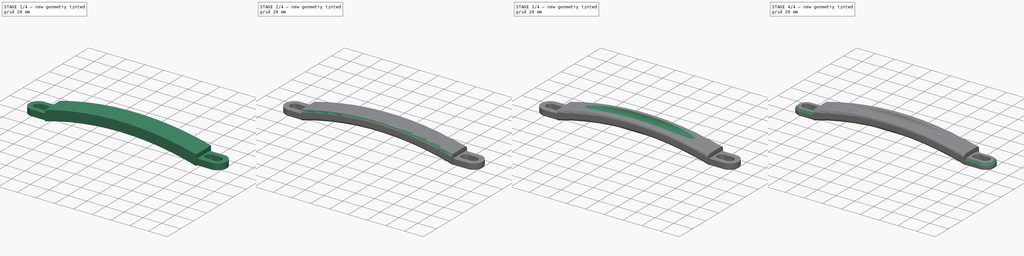
[diagram: build sequence overview — one tinted view per stage of 4, left to right]
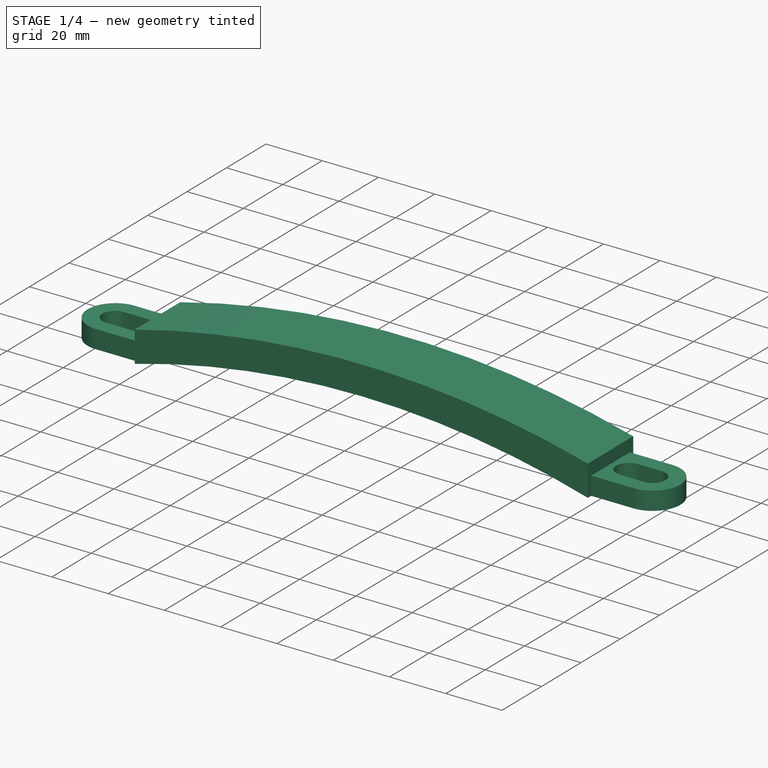
[diagram: stage 1 of 4 — iso view after this stage's code; geometry added in this stage tinted green]
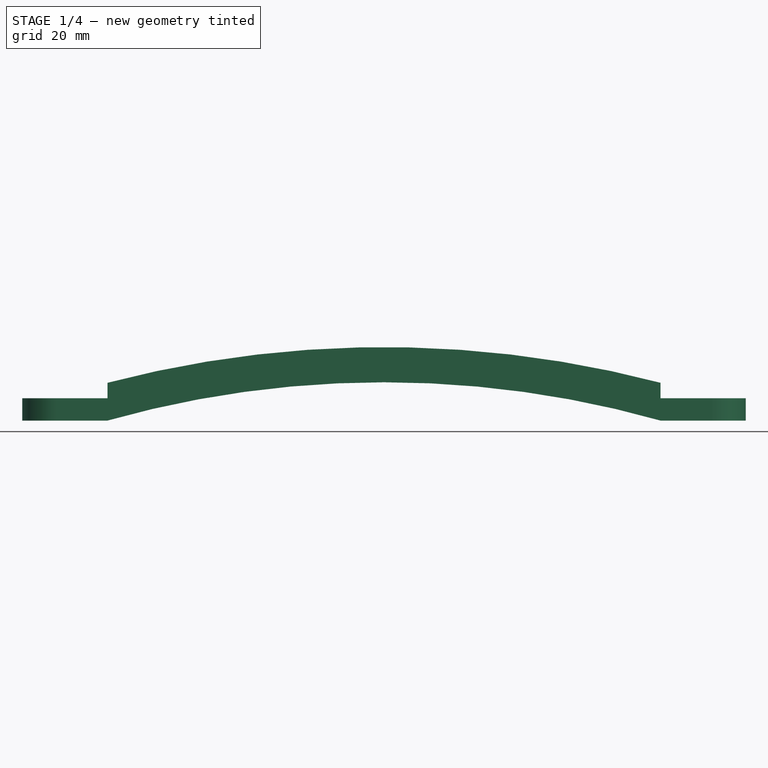
[diagram: stage 1 of 4 — front view after this stage's code; geometry added in this stage tinted green]
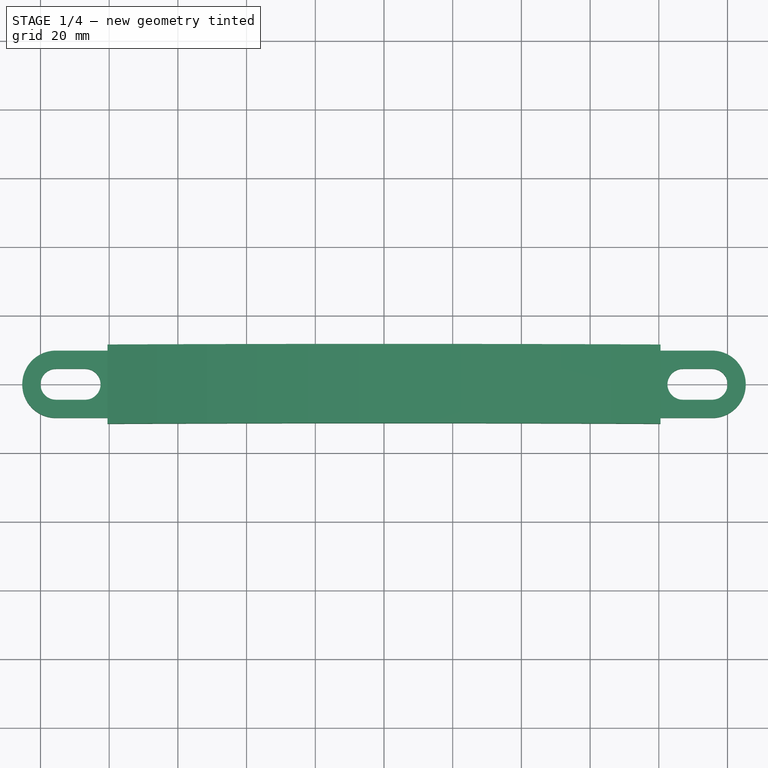
[diagram: stage 1 of 4 — top view after this stage's code; geometry added in this stage tinted green]
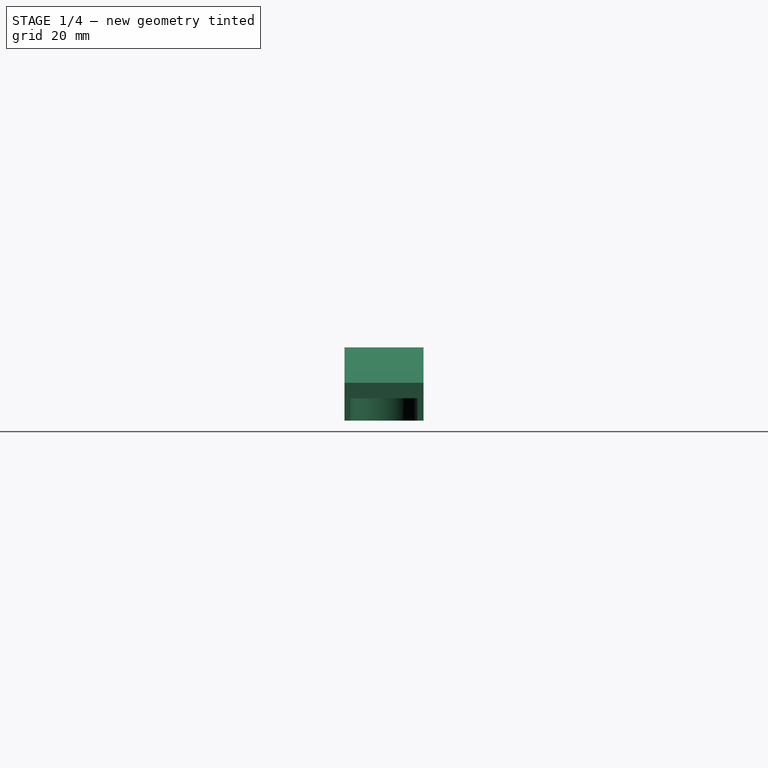
[diagram: stage 1 of 4 — right view after this stage's code; geometry added in this stage tinted green]
FCSTD DOCUMENT  (FreeCAD 1.1R)
Label: handle
License: All rights reserved
LicenseURL: https://en.wikipedia.org/wiki/All_rights_reserved
objects: Sketcher::SketchObject×7, PartDesign::Fillet×5, PartDesign::Pad×3, Image::ImagePlane×2, App::Point×1, PartDesign::Pocket×1, PartDesign::Chamfer×1, PartDesign::Body×1
note: 45 computed .brp shape members not serialized (recipe doc carries the construction recipe); baked Part::Feature solids carry a one-line shape summary decoded from their .brp

FEATURE [Image::ImagePlane] _20260408_154925133  label="20260408_154925133"
  Placement = pos=(-1.07723,-6.80532,0) rot=(0,0,1;0.221657rad)
  XSize = 209.535
  YSize = 96.5684
FEATURE [App::Point] Origin001
  Role = Origin
FEATURE [Sketcher::SketchObject] Sketch
  ArcFitTolerance = 1e-06
  AttachmentSupport = -> [Origin]
  ExternalTypes = [0]
  FullyConstrained = true
  MakeInternals = false
  MapMode = 5
  sketch-geometry (2):
    g0: LineSegment StartX=-82.5 StartY=0 StartZ=0 EndX=82.5 EndY=0 EndZ=0
    g1: LineSegment StartX=0 StartY=11.5 StartZ=0 EndX=0 EndY=-11.5 EndZ=0
  constraints (6):
    c: PointOnObject(g1,g-2)
    c: DistanceX(g0,g0) = 165
    c: Symmetric(g0,g0,g-2)
    c: Symmetric(g1,g1,g0)
    c: Symmetric(g1,g1,g-1)
    c: DistanceY(g1,g1) = 23
FEATURE [Sketcher::SketchObject] Sketch001
  ArcFitTolerance = 1e-06
  AttachmentSupport = -> [Sketch]
  ExternalTypes = [0]
  FullyConstrained = true
  MakeInternals = false
  MapMode = 2
  sketch-geometry (16):
    g0: ArcOfCircle CenterX=-95.5 CenterY=0 CenterZ=0 NormalX=0 NormalY=0 NormalZ=1 AngleXU=0 Radius=4.5 StartAngle=1.5708 EndAngle=4.71239
    g1: ArcOfCircle CenterX=-87 CenterY=0 CenterZ=0 NormalX=0 NormalY=0 NormalZ=1 AngleXU=0 Radius=4.5 StartAngle=4.71239 EndAngle=7.85398
    g2: LineSegment StartX=-95.5 StartY=4.5 StartZ=0 EndX=-87 EndY=4.5 EndZ=0
    g3: LineSegment StartX=-95.5 StartY=-4.5 StartZ=0 EndX=-87 EndY=-4.5 EndZ=0
    g4: ArcOfCircle CenterX=87 CenterY=0 CenterZ=0 NormalX=0 NormalY=0 NormalZ=1 AngleXU=0 Radius=4.5 StartAngle=1.5708 EndAngle=4.71239
    g5: ArcOfCircle CenterX=95.5 CenterY=0 CenterZ=0 NormalX=0 NormalY=0 NormalZ=1 AngleXU=0 Radius=4.5 StartAngle=4.71239 EndAngle=7.85398
    g6: LineSegment StartX=87 StartY=4.5 StartZ=0 EndX=95.5 EndY=4.5 EndZ=0
    g7: LineSegment StartX=87 StartY=-4.5 StartZ=0 EndX=95.5 EndY=-4.5 EndZ=0
    g8: ArcOfCircle CenterX=-95.5 CenterY=0 CenterZ=0 NormalX=0 NormalY=0 NormalZ=1 AngleXU=0 Radius=9.8 StartAngle=1.5708 EndAngle=4.71239
    g9: ArcOfCircle CenterX=95.5 CenterY=6e-16 CenterZ=0 NormalX=0 NormalY=0 NormalZ=1 AngleXU=0 Radius=9.8 StartAngle=4.71239 EndAngle=7.85398
    g10: LineSegment StartX=-95.5 StartY=9.8 StartZ=0 EndX=-80.5 EndY=9.8 EndZ=0
    g11: LineSegment StartX=-80.5 StartY=9.8 StartZ=0 EndX=-80.5 EndY=-9.8 EndZ=0
    g12: LineSegment StartX=-80.5 StartY=-9.8 StartZ=0 EndX=-95.5 EndY=-9.8 EndZ=0
    g13: LineSegment StartX=95.5 StartY=9.8 StartZ=0 EndX=80.5 EndY=9.8 EndZ=0
    g14: LineSegment StartX=80.5 StartY=9.8 StartZ=0 EndX=80.5 EndY=-9.8 EndZ=0
    g15: LineSegment StartX=80.5 StartY=-9.8 StartZ=0 EndX=95.5 EndY=-9.8 EndZ=0
  constraints (37):
    c: Tangent(g0,g2) = 1.5708
    c: Tangent(g0,g3) = -1.5708
    c: Tangent(g1,g2) = 1.5708
    c: Tangent(g1,g3) = -1.5708
    c: Equal(g0,g1)
    c: PointOnObject(g0,g-1)
    c: PointOnObject(g1,g-1)
    c: Tangent(g4,g6) = 1.5708
    c: Tangent(g4,g7) = -1.5708
    c: Tangent(g5,g6) = 1.5708
    c: Tangent(g5,g7) = -1.5708
    c: Symmetric(g5,g0,g-2)
    c: Symmetric(g4,g1,g-2)
    c: Symmetric(g1,g4,g-2)
    c: Distance(g1,g-2) = 82.5
    c: Distance(g1,g1) = 9
    c: Distance(g0,g1) = 8.5
    c: Coincident(g8,g0)
    c: Vertical(g8,g8)
    c: Vertical(g8,g0)
    c: Symmetric(g9,g8,g-2)
    c: Symmetric(g9,g0,g-2)
    c: Symmetric(g9,g8,g-2)
    c: Distance(g8,g0) = 5.3
    c: Tangent(g10,g8) = 1.5708
    c: Coincident(g10,g11)
    c: Vertical(g11)
    c: Coincident(g11,g12)
    c: Tangent(g12,g8) = 1.5708
    c: DistanceX(g12,g12) = 15
    c: Tangent(g13,g9) = -1.5708
    c: Coincident(g13,g14)
    c: Vertical(g14)
    c: Coincident(g14,g15)
    c: Coincident(g15,g9)
    c: Horizontal(g15)
    c: Symmetric(g14,g11,g-2)
FEATURE [PartDesign::Pad] Pad
  Direction = (0,0,1)
  Length = 6.5
  Length2 = 10
  Profile = -> Sketch001
  ReferenceAxis = -> Sketch001 [N_Axis]
  Refine = true
  SideType = 0
  Suppressed = false
  Type = 0
  Type2 = 0
FEATURE [Image::ImagePlane] _20260408_160630187  label="20260408_160630187"
  Placement = pos=(0.0666704,2.8e-15,15.8706) rot=(0.99069,-0.096265,-0.096265;4.70303rad)
  XSize = 203.001
  YSize = 86.281
FEATURE [Sketcher::SketchObject] Sketch002
  ArcFitTolerance = 1e-06
  AttachmentSupport = -> [Origin]
  ExternalTypes = [0]
  FullyConstrained = false
  MakeInternals = false
  MapMode = 5
  Placement = pos=(0,0,0) rot=(1,0,0;1.5708rad)
  sketch-geometry (4):
    g0: ArcOfCircle CenterX=0 CenterY=-284.992 CenterZ=0 NormalX=0 NormalY=0 NormalZ=1 AngleXU=0 Radius=296.143 StartAngle=1.2955 EndAngle=1.84609
    g1: ArcOfCircle CenterX=0 CenterY=-295.992 CenterZ=0 NormalX=0 NormalY=0 NormalZ=1 AngleXU=0 Radius=317.371 StartAngle=1.31435 EndAngle=1.82724
    g2: LineSegment StartX=-80.5 StartY=0 StartZ=0 EndX=-80.5 EndY=11 EndZ=0
    g3: LineSegment StartX=80.5 StartY=0 StartZ=0 EndX=80.5 EndY=11 EndZ=0
  constraints (12):
    c: PointOnObject(g0,g-2)
    c: Symmetric(g0,g0,g-2)
    c: PointOnObject(g0,g-1)
    c: DistanceX(g0,g0) = 161
    c: PointOnObject(g1,g-2)
    c: Symmetric(g1,g1,g-2)
    c: Distance(g0,g1) = 11
    c: Coincident(g2,g0)
    c: Coincident(g2,g1)
    c: Vertical(g2)
    c: Coincident(g3,g0)
    c: Coincident(g3,g1)
FEATURE [PartDesign::Pad] Pad001
  BaseFeature = -> Pad
  Direction = (0,-1,2e-16)
  Length = 23
  Length2 = 10
  Profile = -> Sketch002
  ReferenceAxis = -> Sketch002 [N_Axis]
  Refine = true
  SideType = 2
  Suppressed = false
  Type = 0
  Type2 = 0
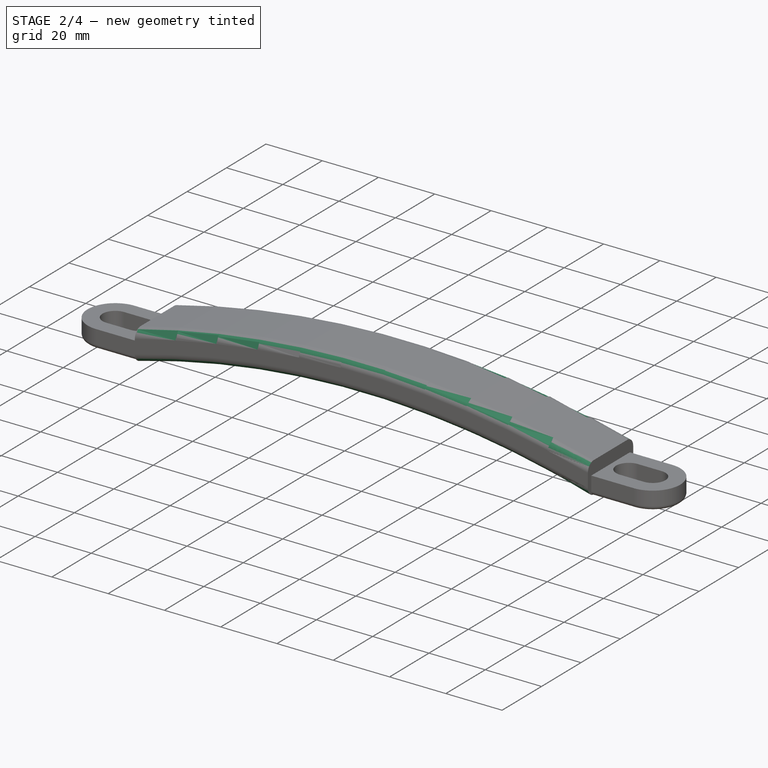
[diagram: stage 2 of 4 — iso view after this stage's code; geometry added in this stage tinted green]
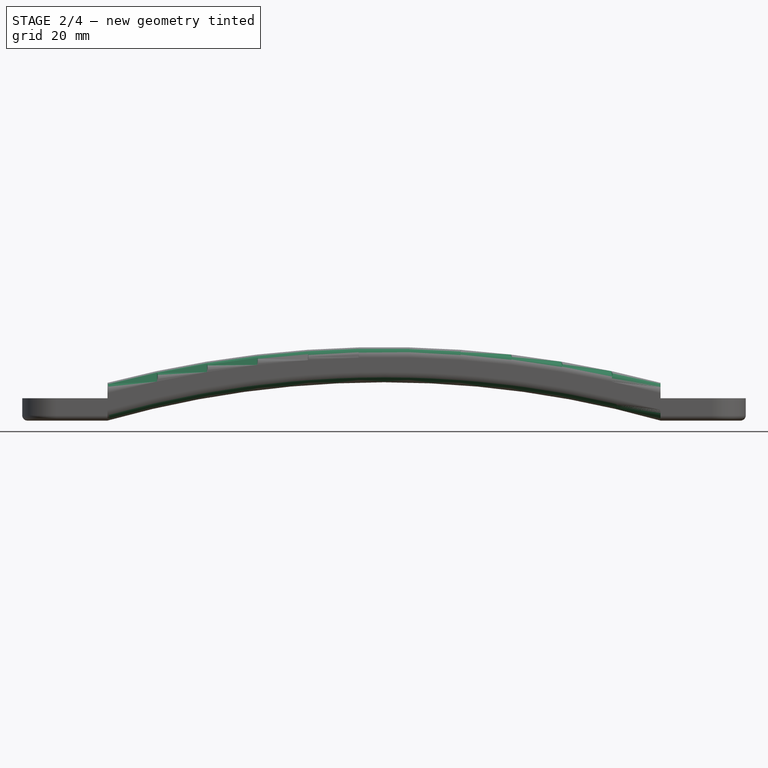
[diagram: stage 2 of 4 — front view after this stage's code; geometry added in this stage tinted green]
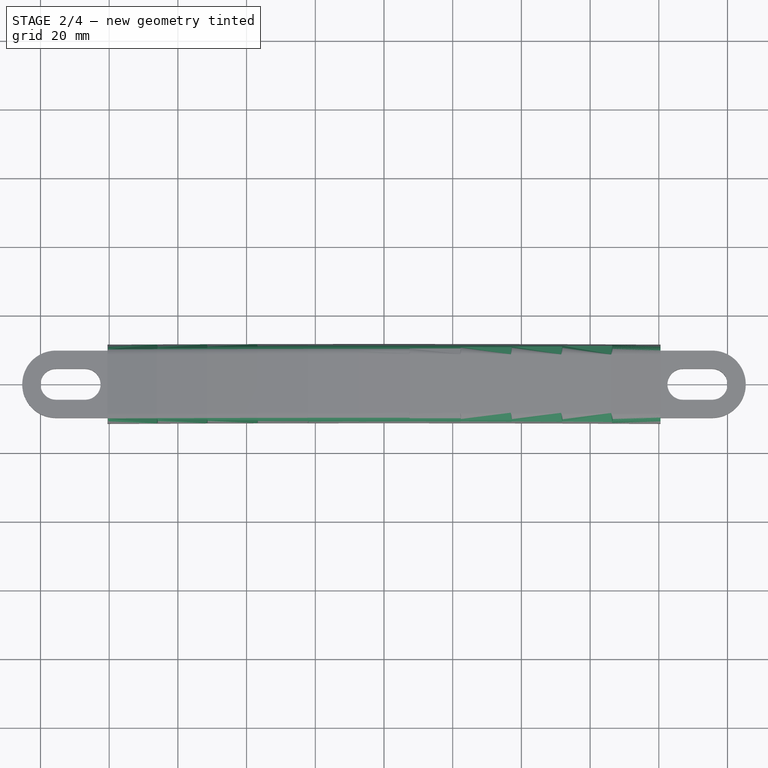
[diagram: stage 2 of 4 — top view after this stage's code; geometry added in this stage tinted green]
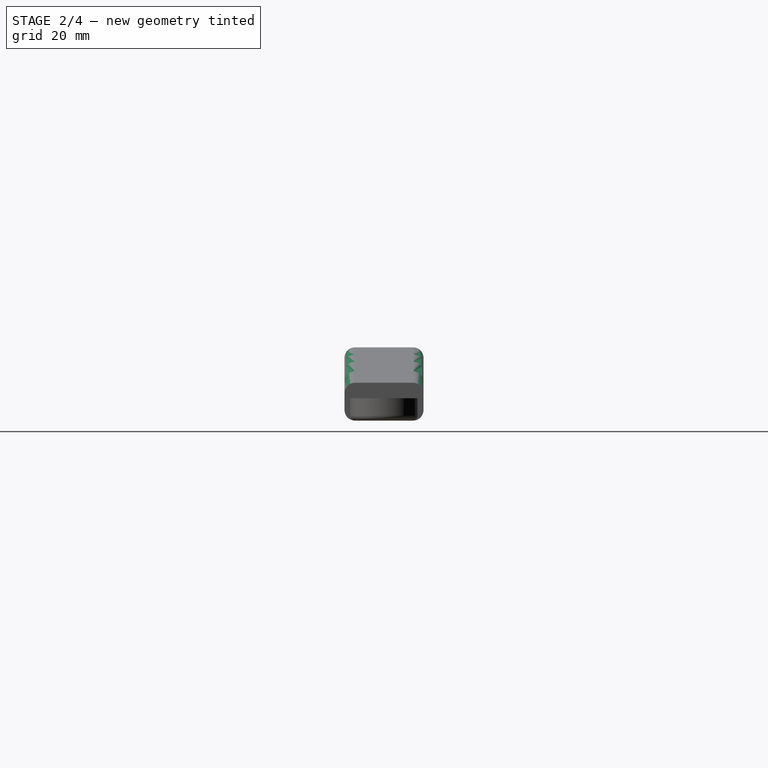
[diagram: stage 2 of 4 — right view after this stage's code; geometry added in this stage tinted green]
FEATURE [PartDesign::Fillet] Fillet
  Base = -> Pad001 [Edge44,Edge45,Edge15]
  BaseFeature = -> Pad001
  Radius = 1.5
  Refine = true
  SupportTransform = false
  Suppressed = false
  UseAllEdges = false
FEATURE [PartDesign::Fillet] Fillet001
  Base = -> Fillet [Edge45,Edge44]
  BaseFeature = -> Fillet
  Radius = 3
  Refine = true
  SupportTransform = false
  Suppressed = false
  UseAllEdges = false
FEATURE [PartDesign::Fillet] Fillet002
  Base = -> Fillet001 [Edge29,Edge24]
  BaseFeature = -> Fillet001
  Radius = 3
  Refine = true
  SupportTransform = false
  Suppressed = false
  UseAllEdges = false
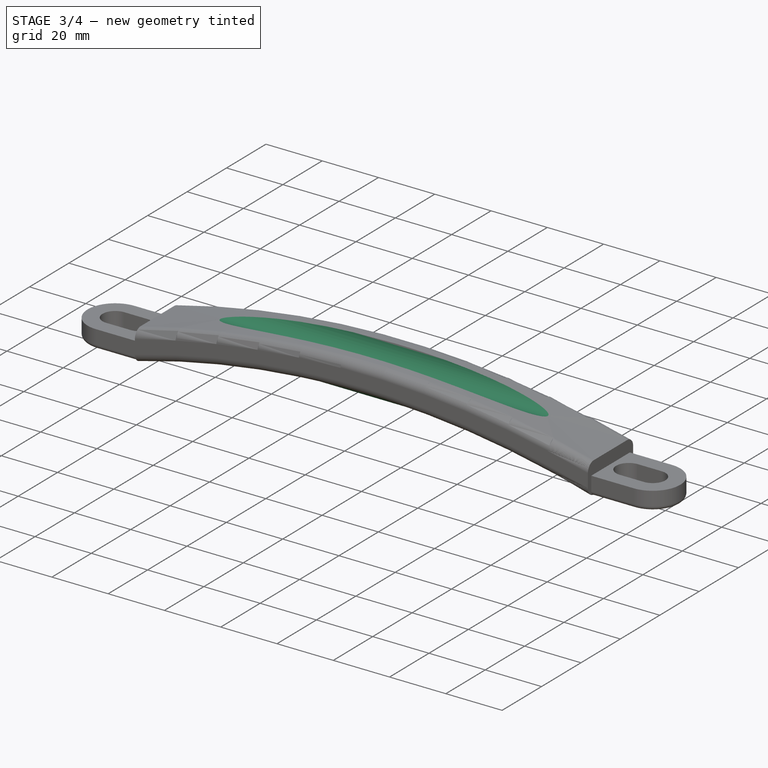
[diagram: stage 3 of 4 — iso view after this stage's code; geometry added in this stage tinted green]
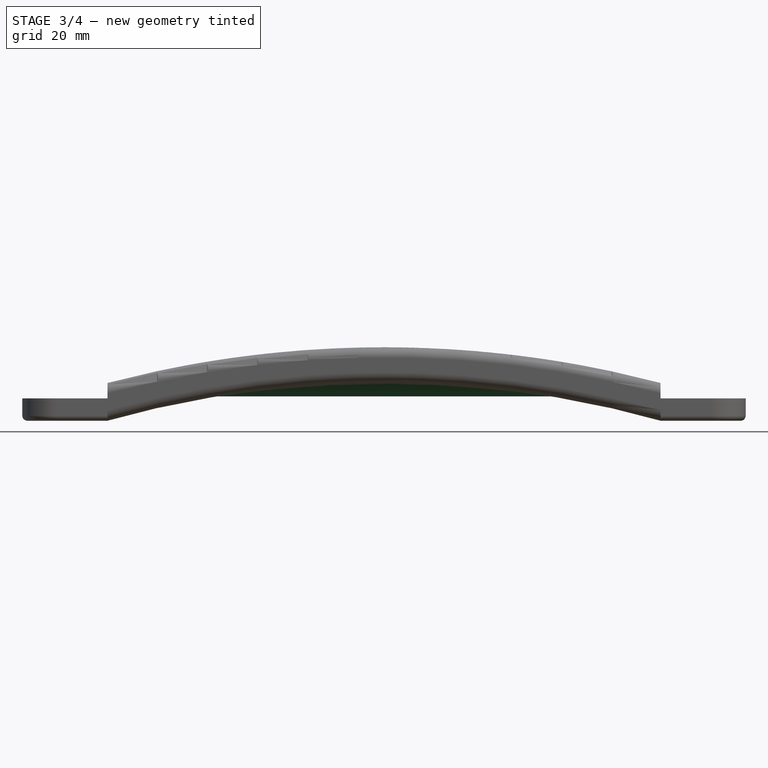
[diagram: stage 3 of 4 — front view after this stage's code; geometry added in this stage tinted green]
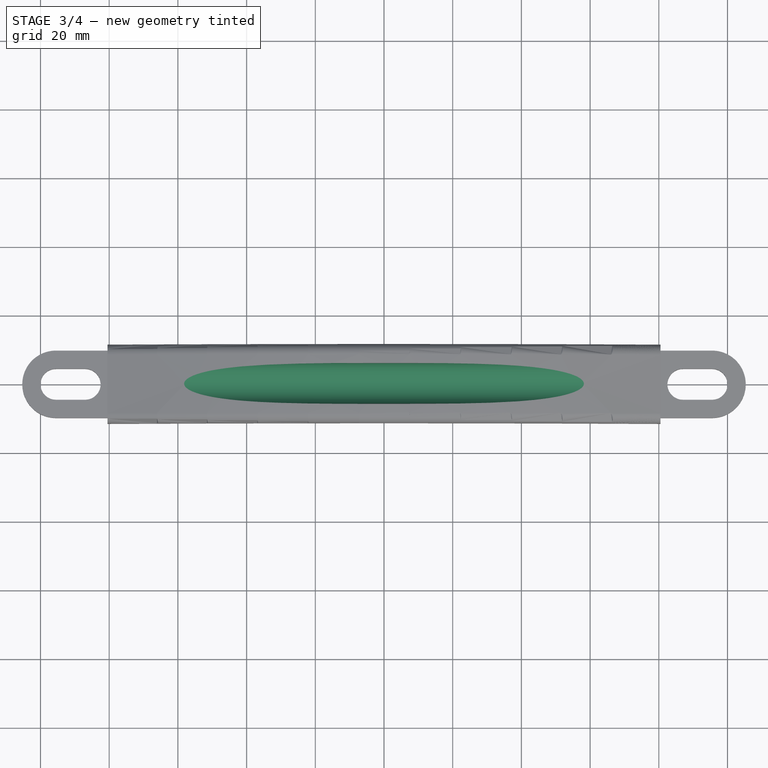
[diagram: stage 3 of 4 — top view after this stage's code; geometry added in this stage tinted green]
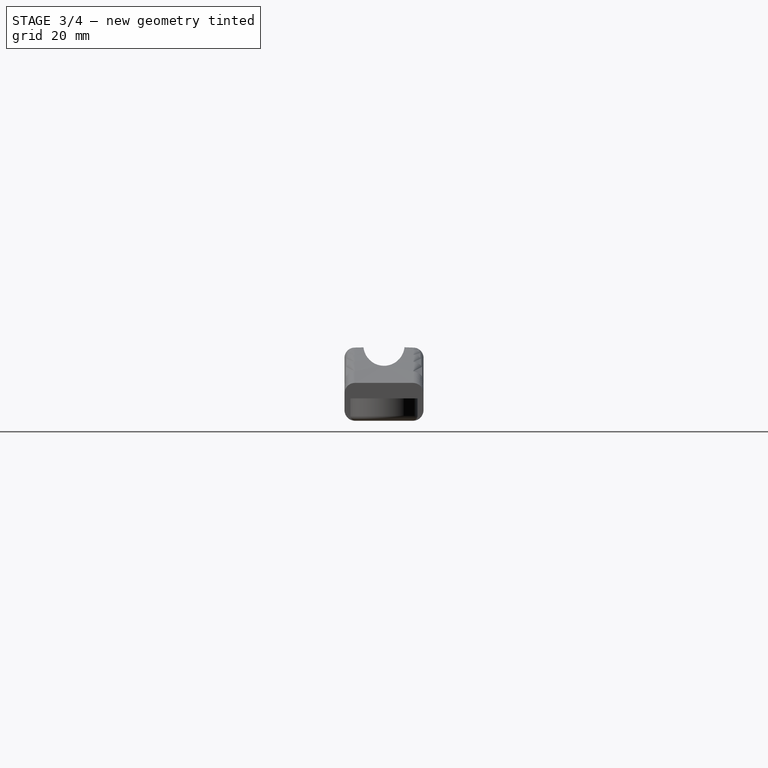
[diagram: stage 3 of 4 — right view after this stage's code; geometry added in this stage tinted green]
FEATURE [Sketcher::SketchObject] Sketch003
  ArcFitTolerance = 1e-06
  AttachmentSupport = -> [Origin]
  ExternalTypes = [0]
  FullyConstrained = true
  MakeInternals = false
  MapMode = 5
  Placement = pos=(0,0,0) rot=(0.57735,0.57735,0.57735;2.0944rad)
  sketch-geometry (1):
    g0: Circle CenterX=0 CenterY=22 CenterZ=0 NormalX=0 NormalY=0 NormalZ=1 AngleXU=0 Radius=6
  constraints (3):
    c: Diameter(g0) = 12
    c: PointOnObject(g0,g-2)
    c: Distance(g0,g-1) = 22
FEATURE [PartDesign::Pocket] Pocket
  BaseFeature = -> Fillet002
  Direction = (-1,0,0)
  Length = 500
  Length2 = 5
  Profile = -> Sketch003
  ReferenceAxis = -> Sketch003 [N_Axis]
  Refine = true
  SideType = 2
  Suppressed = false
  Type = 0
  Type2 = 0
FEATURE [Sketcher::SketchObject] Sketch004
  ArcFitTolerance = 1e-06
  AttachmentSupport = -> [Origin]
  ExternalTypes = [0]
  FullyConstrained = false
  MakeInternals = false
  MapMode = 5
  Placement = pos=(0,0,0) rot=(0.57735,0.57735,0.57735;2.0944rad)
  sketch-geometry (2):
    g0: LineSegment StartX=-8.75 StartY=11.4259 StartZ=0 EndX=8.75 EndY=11.4259 EndZ=0
    g1: ArcOfCircle CenterX=-2e-16 CenterY=18.0714 CenterZ=0 NormalX=0 NormalY=0 NormalZ=1 AngleXU=0 Radius=10.9875 StartAngle=3.79114 EndAngle=5.63364
  constraints (4):
    c: Symmetric(g0,g0,g-2)
    c: Coincident(g1,g0)
    c: Coincident(g1,g0)
    c: Distance(g0,g0) = 17.5
FEATURE [PartDesign::Pad] Pad002
  BaseFeature = -> Pocket
  Direction = (1,0,0)
  Length = 120
  Length2 = 10
  Profile = -> Sketch004
  ReferenceAxis = -> Sketch004 [N_Axis]
  Refine = true
  SideType = 2
  Suppressed = false
  Type = 0
  Type2 = 0
FEATURE [Sketcher::SketchObject] Sketch005
  ArcFitTolerance = 1e-06
  AttachmentSupport = -> [Origin]
  ExternalTypes = [0]
  FullyConstrained = false
  MakeInternals = false
  MapMode = 5
  sketch-geometry (1):
    g0: LineSegment StartX=-82.7276 StartY=0 StartZ=0 EndX=83.2409 EndY=0 EndZ=0
  constraints (2):
    c: PointOnObject(g0,g-1)
    c: PointOnObject(g0,g-1)
FEATURE [Sketcher::SketchObject] Sketch006
  ArcFitTolerance = 1e-06
  AttachmentSupport = -> [Origin]
  ExternalTypes = [0]
  FullyConstrained = false
  MakeInternals = false
  MapMode = 5
  sketch-geometry (3):
    g0: LineSegment StartX=-83.8866 StartY=8.3941 StartZ=0 EndX=-83.8866 EndY=-8.6059 EndZ=0
    g1: LineSegment StartX=-100.004 StartY=0 StartZ=0 EndX=-83.0043 EndY=0 EndZ=0
    g2: LineSegment StartX=-104.721 StartY=0 StartZ=0 EndX=-79.7209 EndY=0 EndZ=0
  constraints (8):
    c: Vertical(g0)
    c: Distance(g0,g0) = 17
    c: PointOnObject(g1,g-1)
    c: PointOnObject(g1,g-1)
    c: DistanceX(g1,g1) = 17
    c: PointOnObject(g2,g-1)
    c: PointOnObject(g2,g-1)
    c: Distance(g2,g2) = 25
FEATURE [PartDesign::Fillet] Fillet003
  Base = -> Pad002 [Edge29]
  BaseFeature = -> Pad002
  Radius = 2
  Refine = true
  SupportTransform = false
  Suppressed = false
  UseAllEdges = false
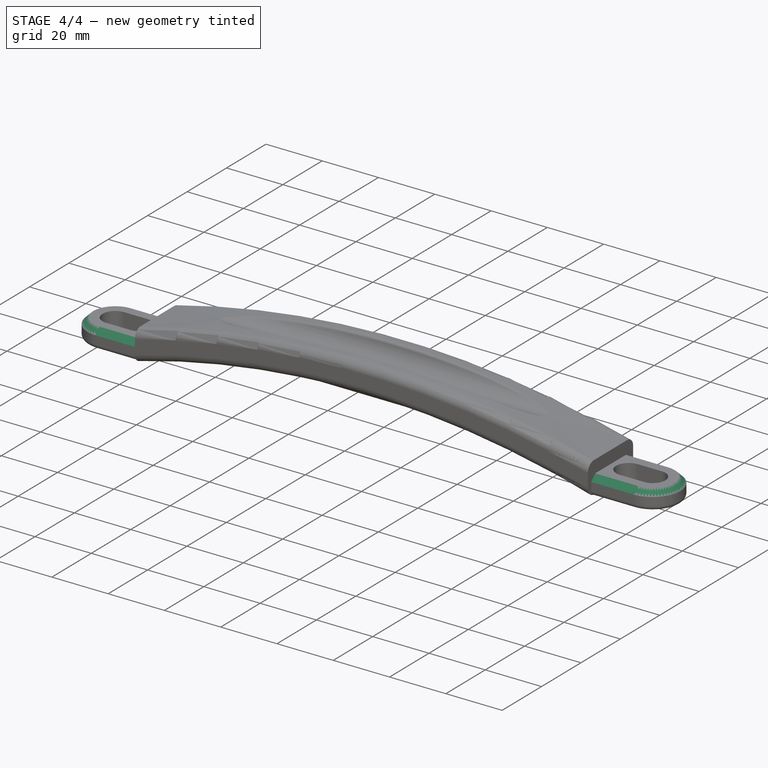
[diagram: stage 4 of 4 — iso view after this stage's code; geometry added in this stage tinted green]
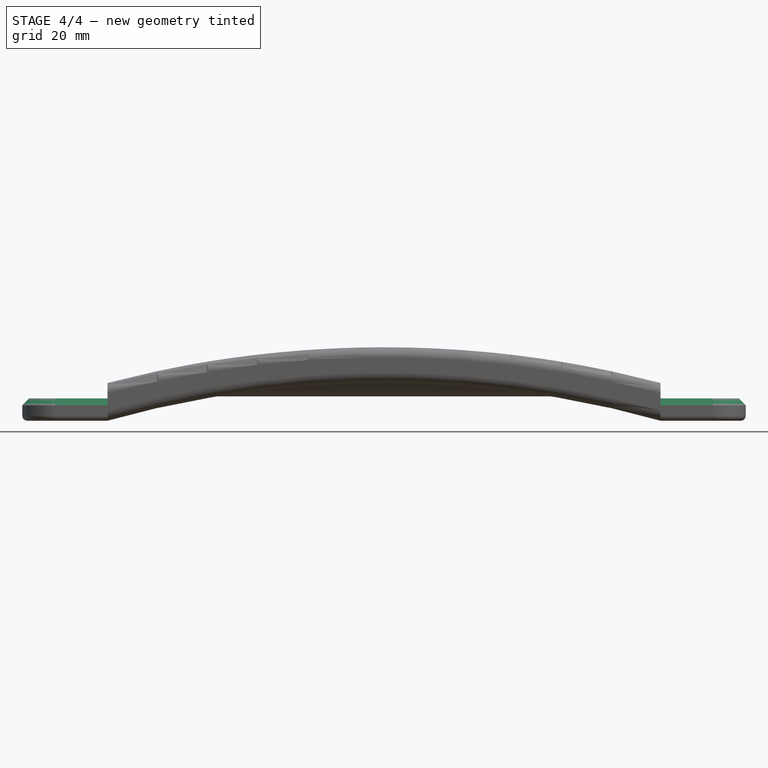
[diagram: stage 4 of 4 — front view after this stage's code; geometry added in this stage tinted green]
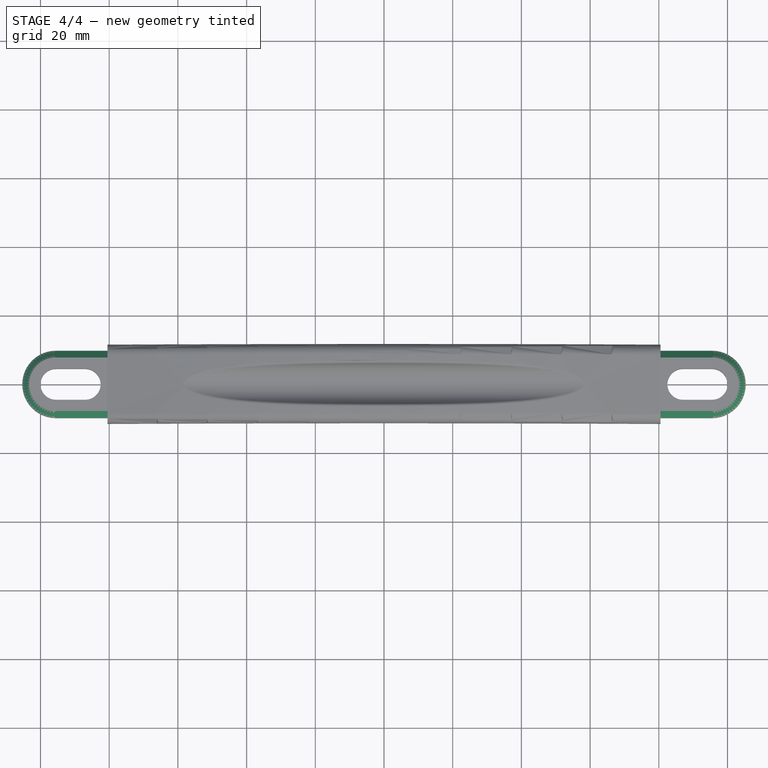
[diagram: stage 4 of 4 — top view after this stage's code; geometry added in this stage tinted green]
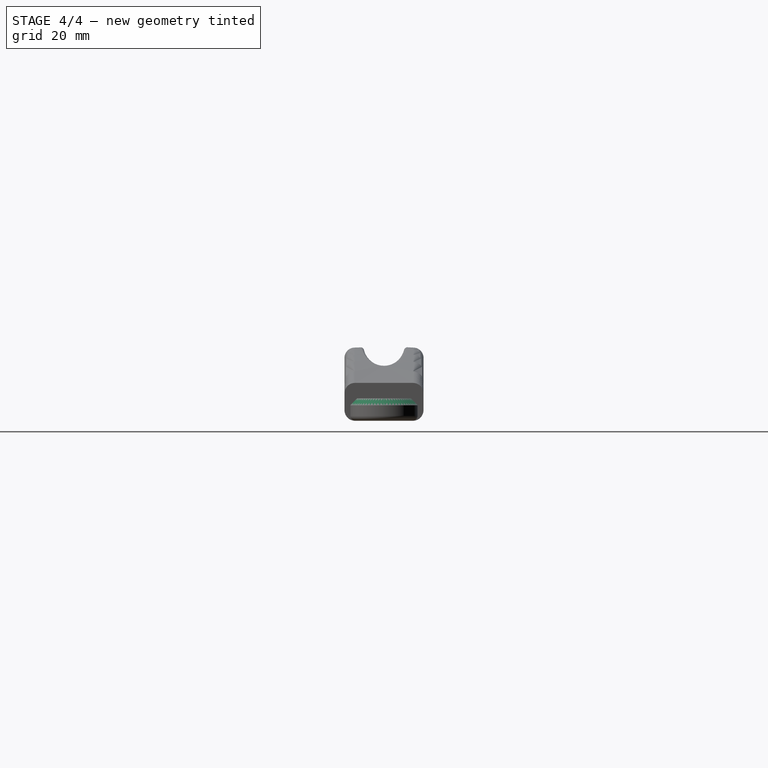
[diagram: stage 4 of 4 — right view after this stage's code; geometry added in this stage tinted green]
FEATURE [PartDesign::Chamfer] Chamfer
  Angle = 45
  Base = -> Fillet003 [Edge63,Edge65,Edge83,Edge86]
  BaseFeature = -> Fillet003
  ChamferType = 0
  FlipDirection = false
  Refine = true
  Size = 2
  Size2 = 1
  SupportTransform = false
  Suppressed = false
  UseAllEdges = false
FEATURE [PartDesign::Fillet] Fillet004
  Base = -> Chamfer [Edge50]
  BaseFeature = -> Chamfer
  Radius = 1
  Refine = true
  SupportTransform = false
  Suppressed = false
  UseAllEdges = false
FEATURE [PartDesign::Body] Body
  AllowCompound = true
  Group = -> [Sketch,Sketch001,Pad,Sketch002,Pad001,Fillet,Fillet001,Fillet002,Sketch003,Pocket,Sketch004,Pad002,Fillet003,Chamfer,Fillet004,Sketch005,Sketch006]
  Origin = -> Origin
  Tip = -> Fillet004
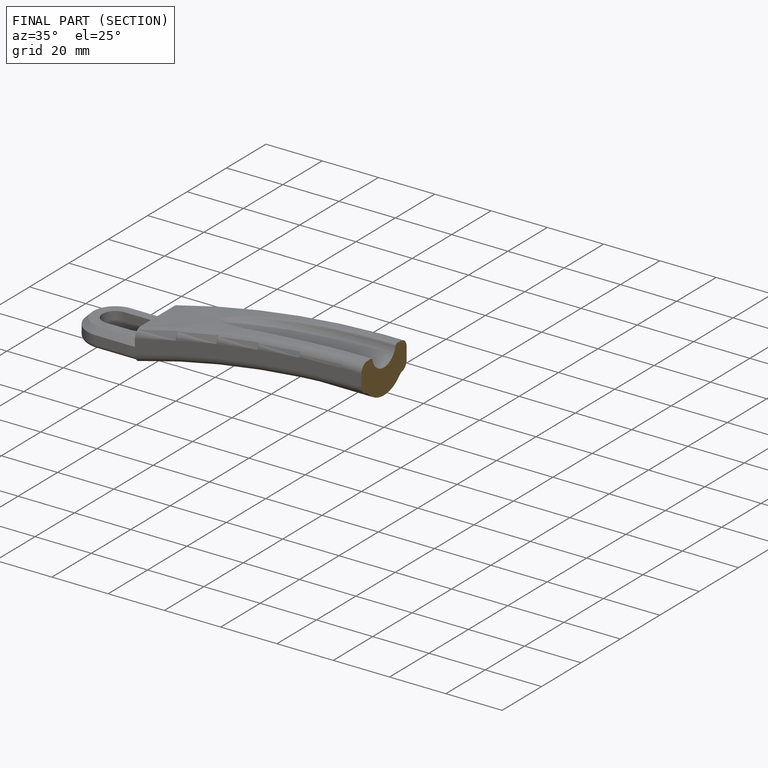
[diagram: finished part — half-section view (interior)]
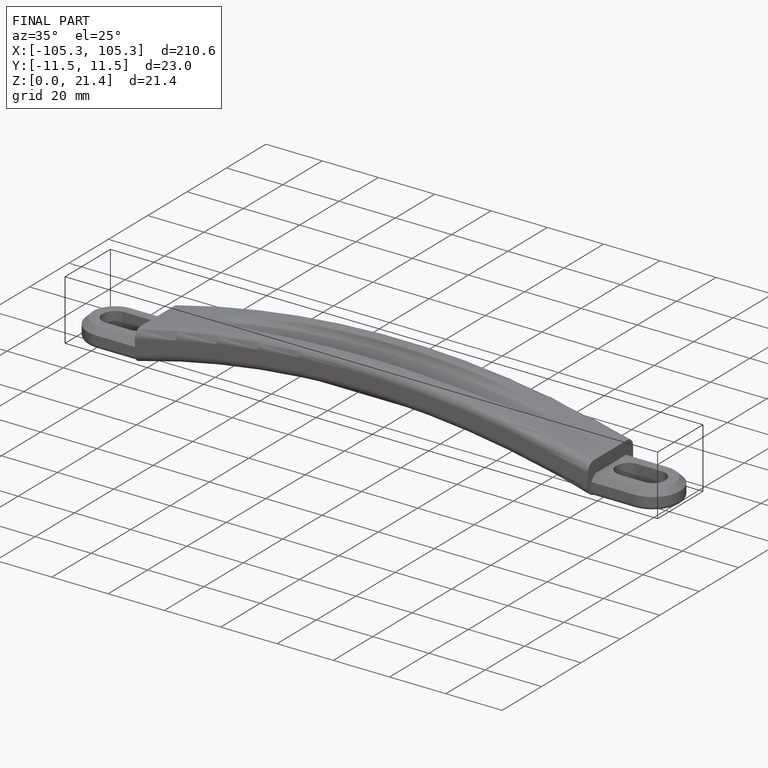
[diagram: finished part — iso view with bounding-box wireframe]
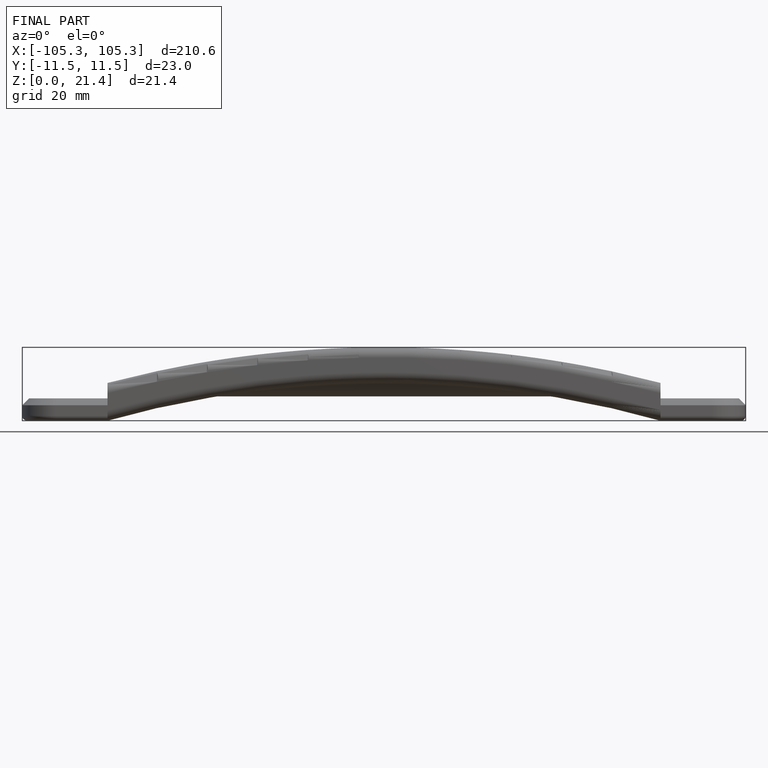
[diagram: finished part — front view with bounding-box wireframe]
